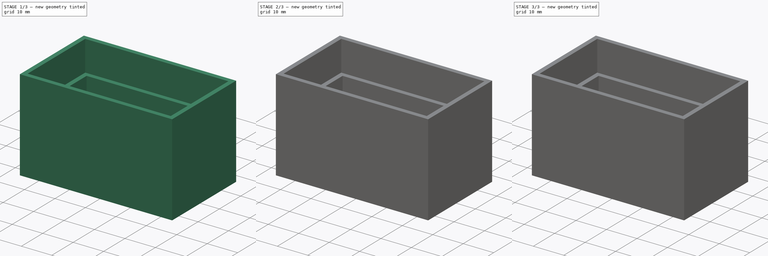
[diagram: build sequence overview — one tinted view per stage of 3, left to right]
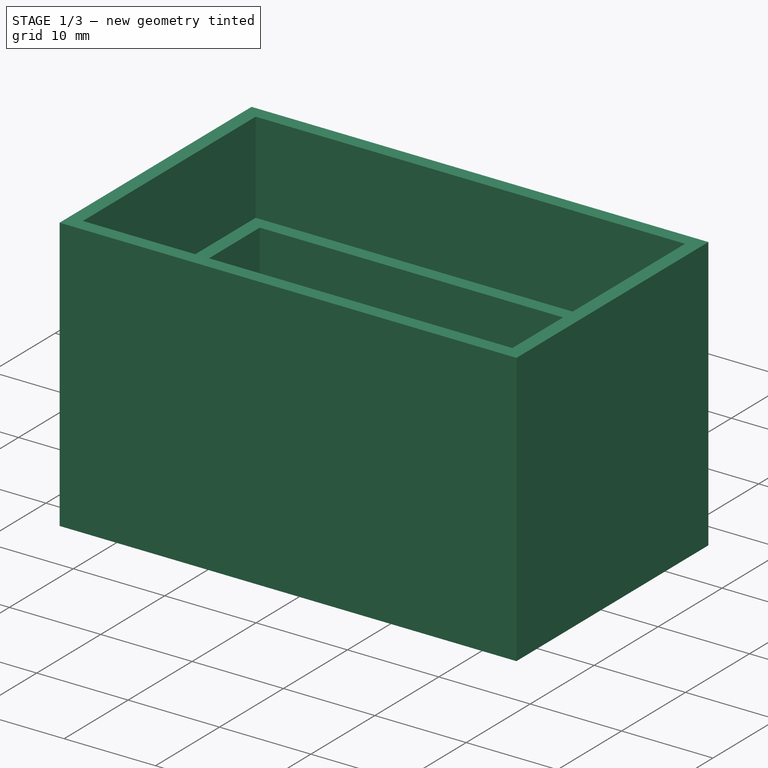
[diagram: stage 1 of 3 — iso view after this stage's code; geometry added in this stage tinted green]
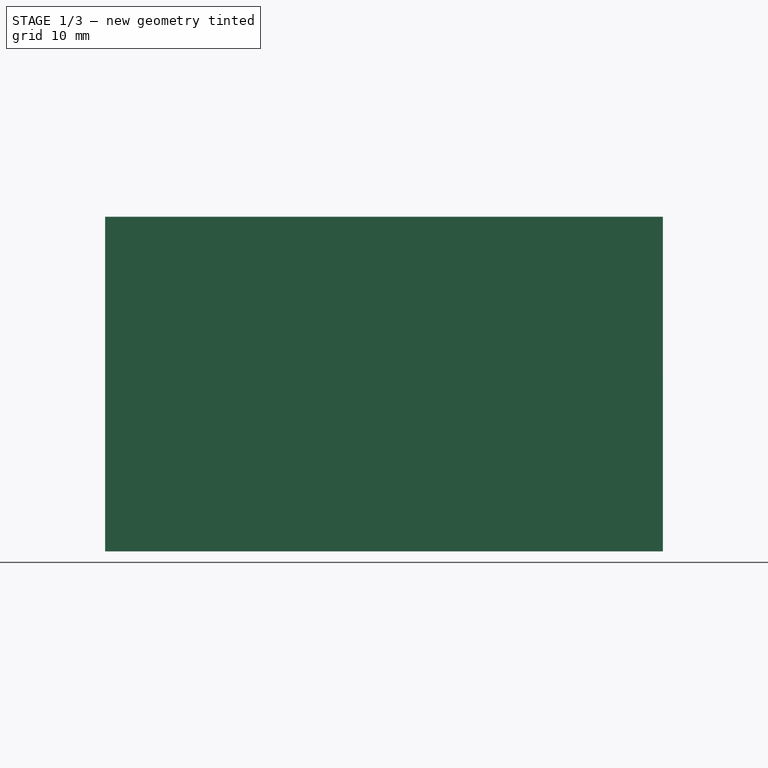
[diagram: stage 1 of 3 — front view after this stage's code; geometry added in this stage tinted green]
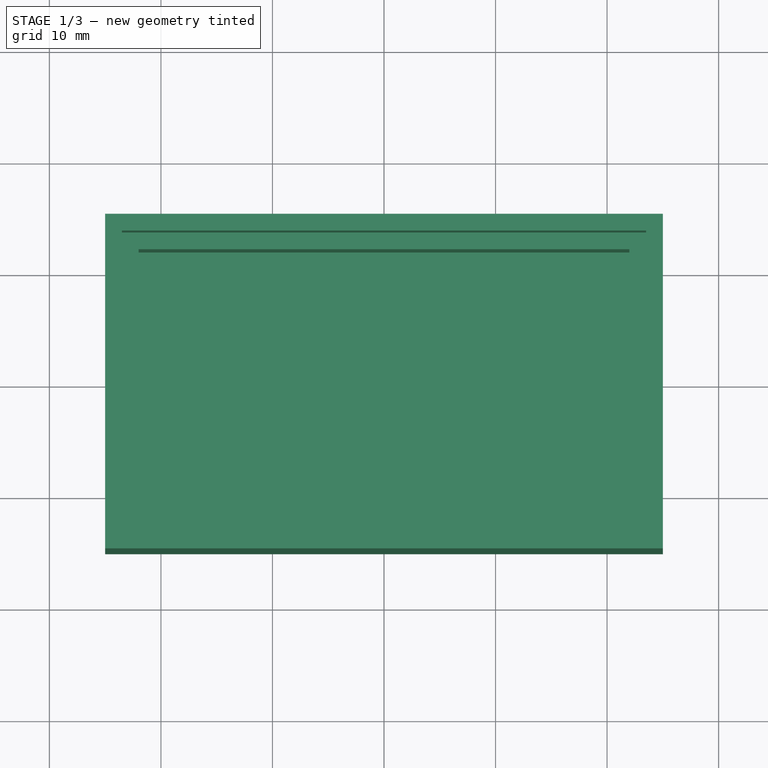
[diagram: stage 1 of 3 — top view after this stage's code; geometry added in this stage tinted green]
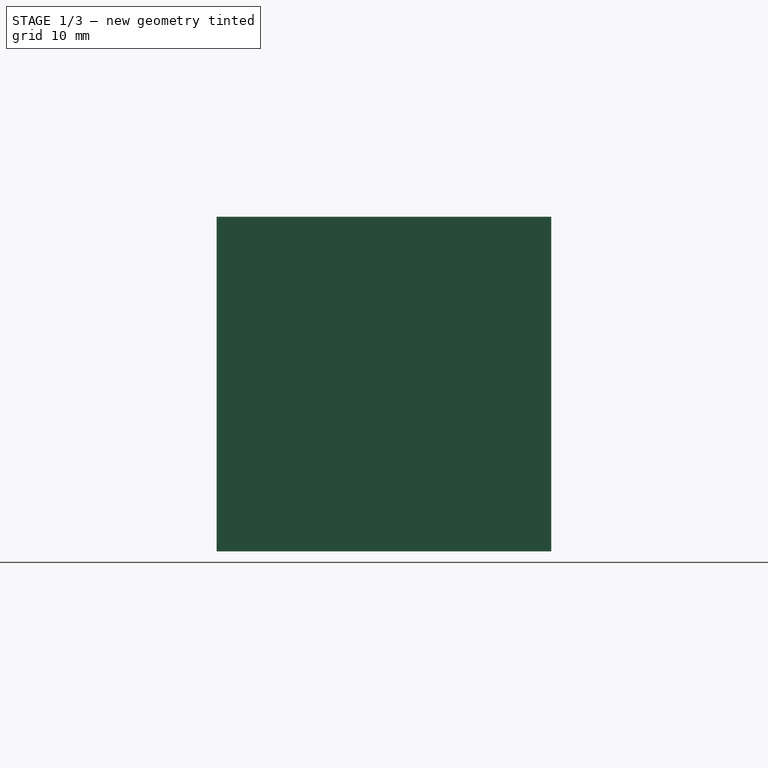
[diagram: stage 1 of 3 — right view after this stage's code; geometry added in this stage tinted green]
FCSTD DOCUMENT  (FreeCAD 0.17R13541 (Git))
Label: boiteBase
License: All rights reserved
LicenseURL: http://en.wikipedia.org/wiki/All_rights_reserved
objects: Sketcher::SketchObject×4, Drawing::FeatureViewPart×3, Part::Mirroring×3, PartDesign::Pad×2, PartDesign::Pocket×2, PartDesign::Body×2, Drawing::FeatureViewPython×2, PartDesign::FeatureBase×1, App::DocumentObjectGroup×1, App::Part×1, Drawing::FeaturePage×1
note: 18 computed .brp shape members not serialized (recipe doc carries the construction recipe); baked Part::Feature solids carry a one-line shape summary decoded from their .brp

FEATURE [Sketcher::SketchObject] Sketch
  MapMode = 5
  Support = -> [XY_Plane]
  sketch-geometry (4):
    g0: LineSegment StartX=-25 StartY=15 StartZ=0 EndX=25 EndY=15 EndZ=0
    g1: LineSegment StartX=25 StartY=15 StartZ=0 EndX=25 EndY=-15 EndZ=0
    g2: LineSegment StartX=25 StartY=-15 StartZ=0 EndX=-25 EndY=-15 EndZ=0
    g3: LineSegment StartX=-25 StartY=-15 StartZ=0 EndX=-25 EndY=15 EndZ=0
  constraints (12):
    c: Coincident(g0,g1)
    c: Coincident(g1,g2)
    c: Coincident(g2,g3)
    c: Coincident(g3,g0)
    c: Horizontal(g0)
    c: Horizontal(g2)
    c: Vertical(g1)
    c: Vertical(g3)
    c: DistanceX(g0,g0) = 50
    c: DistanceY(g1,g1) = 30
    c: Symmetric(g0,g0,g-2)
    c: Symmetric(g0,g1,g-1)
FEATURE [PartDesign::Pad] Pad  label="Dessous ext"
  Length = 30
  Length2 = 100
  Profile = -> Sketch
  Type = 0
FEATURE [Sketcher::SketchObject] Sketch002
  MapMode = 5
  Placement = pos=(0,0,30) rot=(0,0,1;0rad)
  Support = -> [Pad]
  sketch-geometry (4):
    g0: LineSegment StartX=-22 StartY=12 StartZ=0 EndX=22 EndY=12 EndZ=0
    g1: LineSegment StartX=22 StartY=12 StartZ=0 EndX=22 EndY=-12 EndZ=0
    g2: LineSegment StartX=22 StartY=-12 StartZ=0 EndX=-22 EndY=-12 EndZ=0
    g3: LineSegment StartX=-22 StartY=-12 StartZ=0 EndX=-22 EndY=12 EndZ=0
  constraints (12):
    c: Coincident(g0,g1)
    c: Coincident(g1,g2)
    c: Coincident(g2,g3)
    c: Coincident(g3,g0)
    c: Horizontal(g0)
    c: Horizontal(g2)
    c: Vertical(g1)
    c: Vertical(g3)
    c: DistanceY(g1,g1) = 24
    c: DistanceX(g0,g0) = 44
    c: Symmetric(g0,g0,g-2)
    c: Symmetric(g0,g1,g-1)
FEATURE [PartDesign::Pocket] Pocket
  BaseFeature = -> Pad
  Length = 27
  Length2 = 100
  Profile = -> Sketch002
  Type = 0
FEATURE [Sketcher::SketchObject] Sketch003
  MapMode = 5
  Placement = pos=(0,0,30) rot=(0,0,1;0rad)
  Support = -> [Pocket]
  sketch-geometry (4):
    g0: LineSegment StartX=-23.5 StartY=13.5 StartZ=0 EndX=23.5 EndY=13.5 EndZ=0
    g1: LineSegment StartX=23.5 StartY=13.5 StartZ=0 EndX=23.5 EndY=-13.5 EndZ=0
    g2: LineSegment StartX=23.5 StartY=-13.5 StartZ=0 EndX=-23.5 EndY=-13.5 EndZ=0
    g3: LineSegment StartX=-23.5 StartY=-13.5 StartZ=0 EndX=-23.5 EndY=13.5 EndZ=0
  constraints (12):
    c: Coincident(g0,g1)
    c: Coincident(g1,g2)
    c: Coincident(g2,g3)
    c: Coincident(g3,g0)
    c: Horizontal(g0)
    c: Horizontal(g2)
    c: Vertical(g1)
    c: Vertical(g3)
    c: DistanceX(g0,g0) = 47
    c: DistanceY(g1,g1) = 27
    c: Symmetric(g0,g0,g-2)
    c: Symmetric(g0,g1,g-1)
FEATURE [PartDesign::Pocket] Pocket001
  BaseFeature = -> Pocket
  Length = 10
  Length2 = 100
  Profile = -> Sketch003
  Type = 0
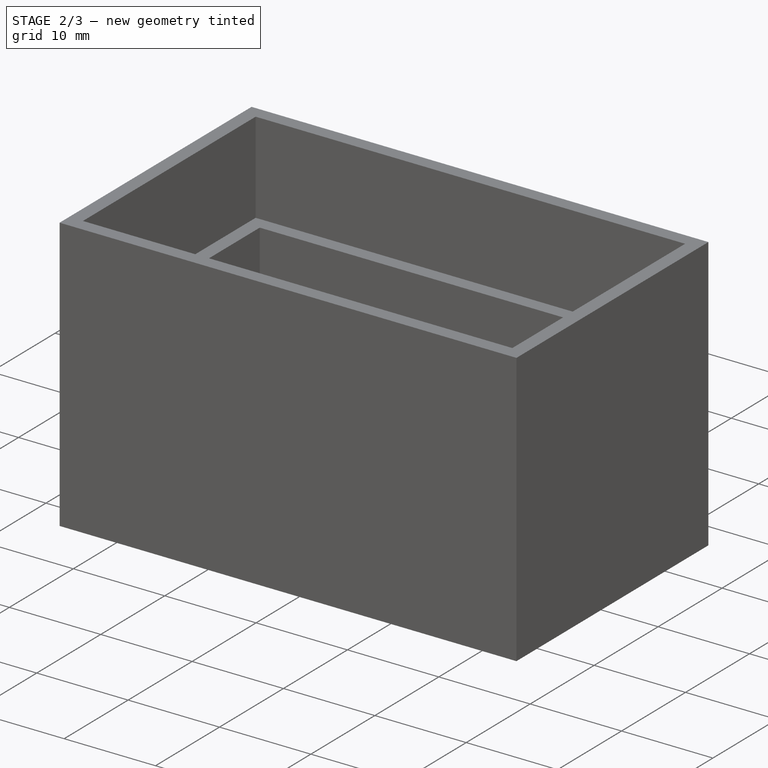
[diagram: stage 2 of 3 — iso view after this stage's code; geometry added in this stage tinted green]
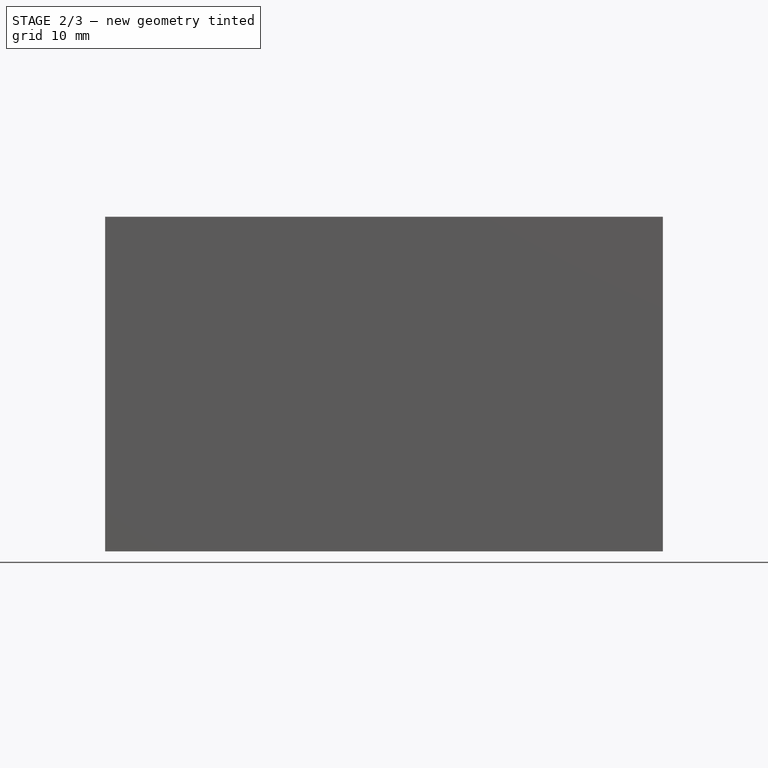
[diagram: stage 2 of 3 — front view after this stage's code; geometry added in this stage tinted green]
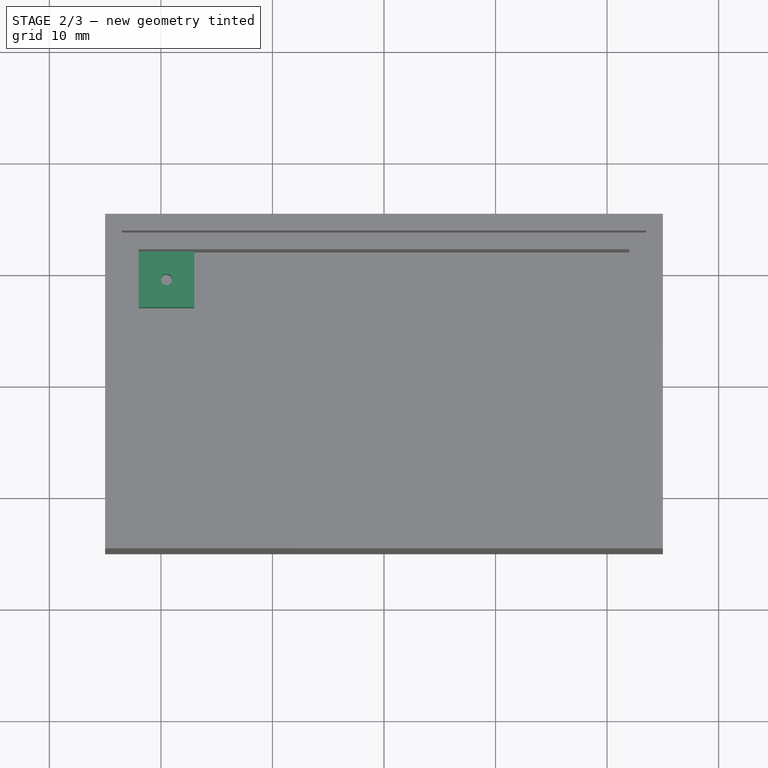
[diagram: stage 2 of 3 — top view after this stage's code; geometry added in this stage tinted green]
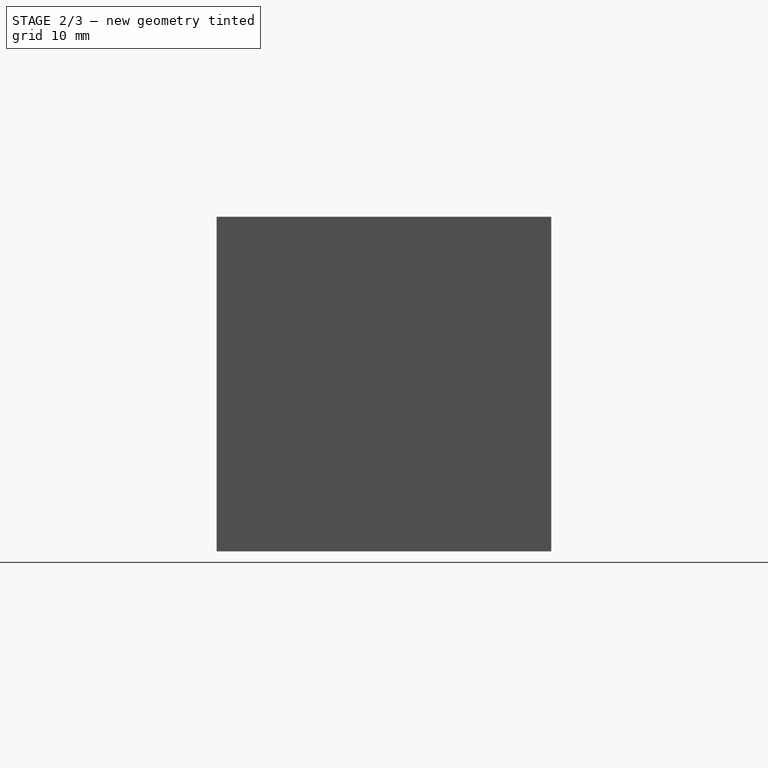
[diagram: stage 2 of 3 — right view after this stage's code; geometry added in this stage tinted green]
FEATURE [PartDesign::Body] Body
  Group = -> [Sketch,Pad,Sketch002,Pocket,Sketch003,Pocket001]
  Origin = -> Origin
  Tip = -> Pocket001
FEATURE [Sketcher::SketchObject] Sketch005
  MapMode = 5
  Placement = pos=(0,0,3) rot=(0,0,1;0rad)
  Support = -> [Pocket001]
  sketch-geometry (8):
    g0: LineSegment StartX=-22 StartY=12 StartZ=0 EndX=-17 EndY=12 EndZ=0
    g1: LineSegment StartX=-17 StartY=12 StartZ=0 EndX=-17 EndY=7 EndZ=0
    g2: LineSegment StartX=-17 StartY=7 StartZ=0 EndX=-22 EndY=7 EndZ=0
    g3: LineSegment StartX=-22 StartY=7 StartZ=0 EndX=-22 EndY=12 EndZ=0
    g4: LineSegment [constr] StartX=-22 StartY=12 StartZ=0 EndX=-17 EndY=7 EndZ=0
    g5: LineSegment [constr] StartX=-17 StartY=12 StartZ=0 EndX=-22 EndY=7 EndZ=0
    g6: GeomPoint X=-19.5 Y=9.5 Z=0
    g7: Circle CenterX=-19.5 CenterY=9.5 CenterZ=0 NormalX=0 NormalY=0 NormalZ=1 AngleXU=0 Radius=0.5
  constraints (20):
    c: Coincident(g0,g1)
    c: Coincident(g1,g2)
    c: Coincident(g2,g3)
    c: Coincident(g3,g0)
    c: Horizontal(g0)
    c: Horizontal(g2)
    c: Vertical(g1)
    c: Vertical(g3)
    c: DistanceY(g1,g1) = 5
    c: DistanceX(g0,g0) = 5
    c: Coincident(g4,g0)
    c: Coincident(g4,g1)
    c: Coincident(g5,g0)
    c: Coincident(g5,g2)
    c: PointOnObject(g6,g4)
    c: PointOnObject(g6,g5)
    c: Coincident(g7,g6)
    c: Radius(g7) = 0.5
    c: DistanceX(g0,g-1) = 22
    c: DistanceY(g-1,g0) = 12
FEATURE [Drawing::FeatureViewPart] Ortho  label="Ortho_0_0"
  Direction = (1,0,0)
  HiddenWidth = 0.15
  LineWidth = 0.35
  Rotation = -90
  Scale = 1.5
  ShowHiddenLines = true
  ShowSmoothLines = false
  Source = -> Body
  Tolerance = 0.05
  ViewResult = <g id="Ortho_0_0"\n   transform="rotate(-90,84.8333,88.3333) translate(84.8333,88.3333) scale(1.5,1.5)"\n  >\n<g   fill="none"\n   stroke="rgb(0, 0, 0)"\n   stroke-dasharray="0.2,0.1)"\n   stroke-linecap="butt"\n   stroke-linejoin="miter"\n   stroke-width="0.100000"\n   transform="scale(1,-1)"\n  >\n<path id= "1" d=" M 0 -15 L 30 -15 " />\n<path id= "2" d=" M 0 15 L 30 15 " />\n<path id= "3" d=" M 0 15 L 0 -15 " />\n<path id= "4" d=" M 30 15 L 30 -15 " />\n<path id= "5" d=" M 30 -13.5 L 30 13.5 " />\n<path id= "6" d=" M 30 13.5 L 30 -13.5 " />\n<path id= "7" d=" M 30 -13.5 L 20 -13.5 " />\n<path id= "8" d=" M 30 -13.5 L 20 -13.5 " />\n<path id= "9" d=" M 20 -13.5 L 20 13.5 " />\n<path id= "10" d=" M 30 13.5 L 20 13.5 " />\n<path id= "11" d=" M 30 13.5 L 20 13.5 " />\n<path id= "12" d=" M 20 13.5 L 20 -13.5 " />\n<path id= "13" d=" M 20 -12 L 20 12 " />\n<path id= "14" d=" M 20 12 L 20 -12 " />\n<path id= "15" d=" M 20 -12 L 3 -12 " />\n<path id= "16" d=" M 20 -12 L 3 -12 " />\n<path id= "17" d=" M 20 12 L 3 12 " />\n<path id= "18" d=" M 3 -12 L 3 12 " />\n<path id= "19" d=" M 20 12 L 3 12 " />\n<path id= "20" d=" M 3 12 L 3 -12 " />\n</g>\n<g   fill="none"\n   stroke="rgb(0, 0, 0)"\n   stroke-linecap="butt"\n   stroke-linejoin="miter"\n   stroke-width="0.233333"\n   transform="scale(1,-1)"\n  >\n<path id= "1" d=" M 0 -15 L 30 -15 " />\n<path id= "2" d=" M 0 15 L 30 15 " />\n<path id= "3" d=" M 0 -15 L 0 15 " />\n<path id= "4" d=" M 30 -15 L 30 15 " />\n</g>\n</g>
  Visible = true
  X = 84.8333
  Y = 88.3333
FEATURE [Drawing::FeatureViewPart] Ortho002  label="Ortho_0_-1"
  Direction = (0,0,-1)
  HiddenWidth = 0.15
  LineWidth = 0.35
  Rotation = 90
  Scale = 1.5
  ShowHiddenLines = true
  ShowSmoothLines = false
  Source = -> Body
  Tolerance = 0.05
  ViewResult = <g id="Ortho_0_-1"\n   transform="rotate(90,84.8333,144.167) translate(84.8333,144.167) scale(1.5,1.5)"\n  >\n<g   fill="none"\n   stroke="rgb(0, 0, 0)"\n   stroke-dasharray="0.2,0.1)"\n   stroke-linecap="butt"\n   stroke-linejoin="miter"\n   stroke-width="0.100000"\n   transform="scale(1,-1)"\n  >\n<path id= "1" d=" M 25 15 L -25 15 " />\n<path id= "2" d=" M 25 -15 L 25 15 " />\n<path id= "3" d=" M -25 15 L -25 -15 " />\n<path id= "4" d=" M -25 -15 L 25 -15 " />\n<path id= "5" d=" M 23.5 13.5 L -23.5 13.5 " />\n<path id= "6" d=" M -23.5 13.5 L -23.5 -13.5 " />\n<path id= "7" d=" M -23.5 -13.5 L 23.5 -13.5 " />\n<path id= "8" d=" M 23.5 -13.5 L 23.5 13.5 " />\n<path id= "9" d=" M 23.5 13.5 L -23.5 13.5 " />\n<path id= "10" d=" M -23.5 13.5 L -23.5 -13.5 " />\n<path id= "11" d=" M -23.5 -13.5 L 23.5 -13.5 " />\n<path id= "12" d=" M 23.5 -13.5 L 23.5 13.5 " />\n<path id= "13" d=" M 22 12 L -22 12 " />\n<path id= "14" d=" M -22 12 L -22 -12 " />\n<path id= "15" d=" M -22 -12 L 22 -12 " />\n<path id= "16" d=" M 22 -12 L 22 12 " />\n<path id= "17" d=" M 22 12 L -22 12 " />\n<path id= "18" d=" M -22 12 L -22 -12 " />\n<path id= "19" d=" M -22 -12 L 22 -12 " />\n<path id= "20" d=" M 22 -12 L 22 12 " />\n</g>\n<g   fill="none"\n   stroke="rgb(0, 0, 0)"\n   stroke-linecap="butt"\n   stroke-linejoin="miter"\n   stroke-width="0.233333"\n   transform="scale(1,-1)"\n  >\n<path id= "1" d=" M 25 15 L -25 15 " />\n<path id= "2" d=" M 25 -15 L 25 15 " />\n<path id= "3" d=" M -25 15 L -25 -15 " />\n<path id= "4" d=" M -25 -15 L 25 -15 " />\n</g>\n</g>
  Visible = true
  X = 84.8333
  Y = 144.167
FEATURE [Drawing::FeatureViewPart] Ortho003  label="Ortho_1_0"
  Direction = (0,1,0)
  HiddenWidth = 0.15
  LineWidth = 0.35
  Rotation = -90
  Scale = 1.5
  ShowHiddenLines = true
  ShowSmoothLines = false
  Source = -> Body
  Tolerance = 0.05
  ViewResult = <g id="Ortho_1_0"\n   transform="rotate(-90,197.167,88.3333) translate(197.167,88.3333) scale(1.5,1.5)"\n  >\n<g   fill="none"\n   stroke="rgb(0, 0, 0)"\n   stroke-dasharray="0.2,0.1)"\n   stroke-linecap="butt"\n   stroke-linejoin="miter"\n   stroke-width="0.100000"\n   transform="scale(1,-1)"\n  >\n<path id= "1" d=" M 0 -25 L 30 -25 " />\n<path id= "2" d=" M 0 25 L 30 25 " />\n<path id= "3" d=" M 0 25 L 0 -25 " />\n<path id= "4" d=" M 30 25 L 30 -25 " />\n<path id= "5" d=" M 30 -23.5 L 30 23.5 " />\n<path id= "6" d=" M 30 23.5 L 30 -23.5 " />\n<path id= "7" d=" M 30 -23.5 L 20 -23.5 " />\n<path id= "8" d=" M 20 -23.5 L 20 23.5 " />\n<path id= "9" d=" M 30 23.5 L 20 23.5 " />\n<path id= "10" d=" M 30 23.5 L 20 23.5 " />\n<path id= "11" d=" M 20 23.5 L 20 -23.5 " />\n<path id= "12" d=" M 30 -23.5 L 20 -23.5 " />\n<path id= "13" d=" M 20 -22 L 20 22 " />\n<path id= "14" d=" M 20 22 L 20 -22 " />\n<path id= "15" d=" M 20 22 L 3 22 " />\n<path id= "16" d=" M 3 -22 L 3 22 " />\n<path id= "17" d=" M 20 -22 L 3 -22 " />\n<path id= "18" d=" M 20 22 L 3 22 " />\n<path id= "19" d=" M 20 -22 L 3 -22 " />\n<path id= "20" d=" M 3 22 L 3 -22 " />\n</g>\n<g   fill="none"\n   stroke="rgb(0, 0, 0)"\n   stroke-linecap="butt"\n   stroke-linejoin="miter"\n   stroke-width="0.233333"\n   transform="scale(1,-1)"\n  >\n<path id= "1" d=" M 0 -25 L 30 -25 " />\n<path id= "2" d=" M 0 25 L 30 25 " />\n<path id= "3" d=" M 0 -25 L 0 25 " />\n<path id= "4" d=" M 30 -25 L 30 25 " />\n</g>\n</g>
  Visible = true
  X = 197.167
  Y = 88.3333
FEATURE [PartDesign::FeatureBase] BaseFeature
  BaseFeature = -> Body
FEATURE [PartDesign::Pad] Pad001  label="support"
  BaseFeature = -> BaseFeature
  Length = 5
  Length2 = 100
  Profile = -> Sketch005
  Type = 0
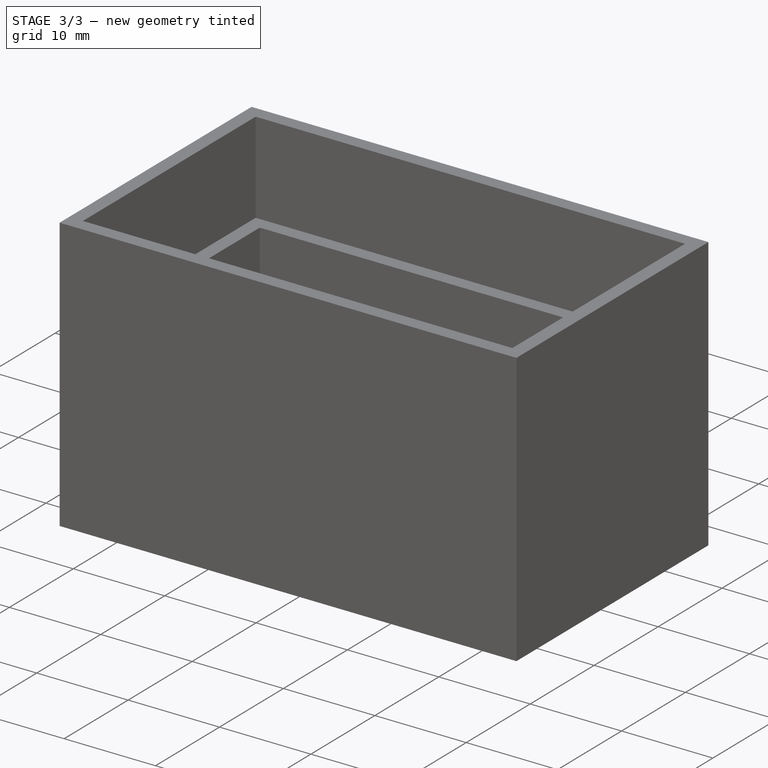
[diagram: stage 3 of 3 — iso view after this stage's code; geometry added in this stage tinted green]
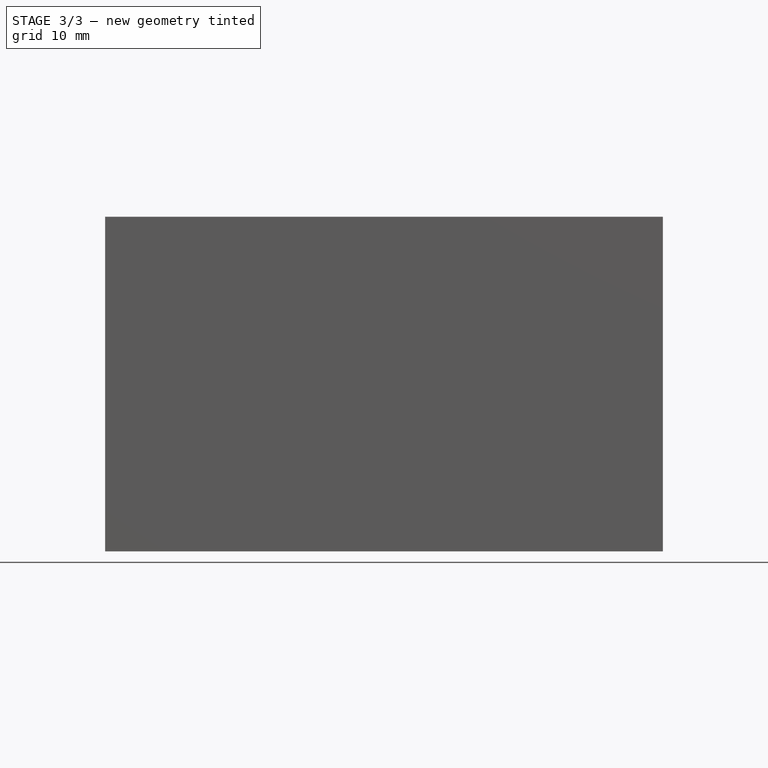
[diagram: stage 3 of 3 — front view after this stage's code; geometry added in this stage tinted green]
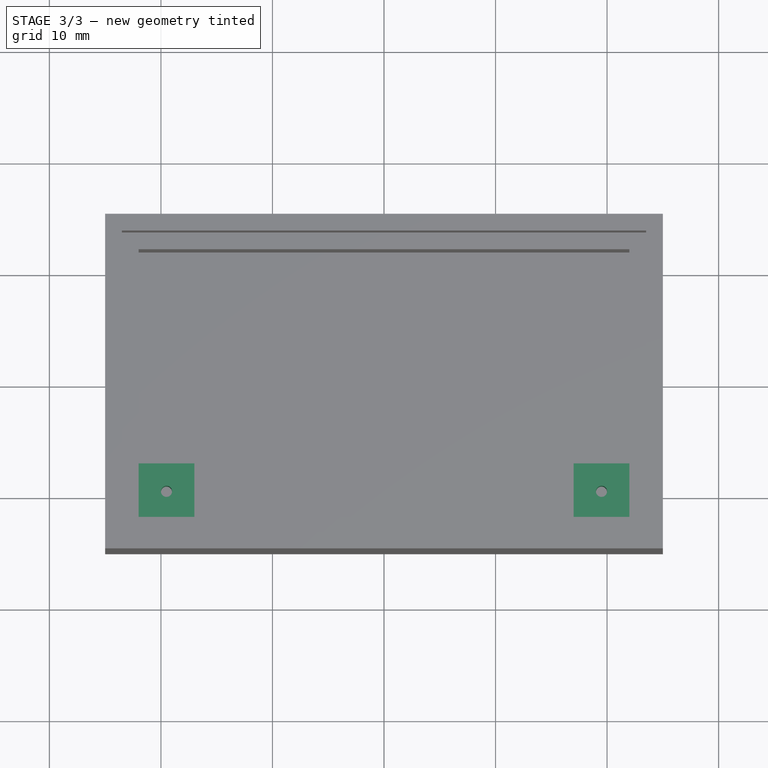
[diagram: stage 3 of 3 — top view after this stage's code; geometry added in this stage tinted green]
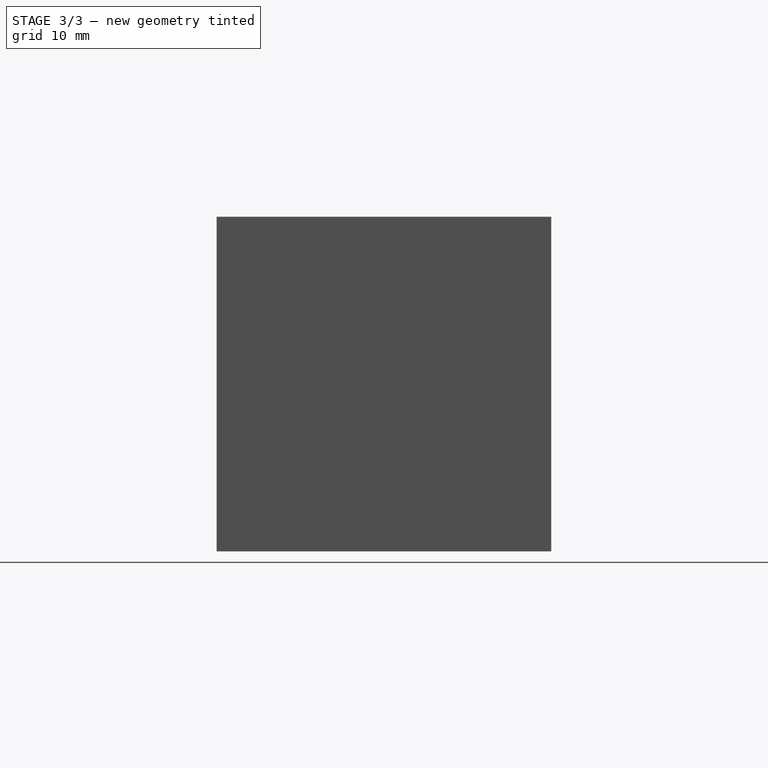
[diagram: stage 3 of 3 — right view after this stage's code; geometry added in this stage tinted green]
FEATURE [PartDesign::Body] Pad001Body
  BaseFeature = -> Body
  Group = -> [BaseFeature,Sketch005,Pad001]
  Origin = -> Origin002
  Tip = -> Pad001
FEATURE [Part::Mirroring] Part__Mirroring  label="support (Mirror #1)"
  Base = (0,0,0)
  Normal = (1,0,0)
  Source = -> Pad001Body
FEATURE [Part::Mirroring] Part__Mirroring001  label="support (Mirror #2)"
  Base = (0,0,0)
  Normal = (0,1,0)
  Source = -> Part__Mirroring
FEATURE [Part::Mirroring] Part__Mirroring002  label="support (Mirror #3)"
  Base = (0,0,0)
  Normal = (0,1,0)
  Source = -> Pad001Body
FEATURE [App::DocumentObjectGroup] Groupe  label="supports"
  Group = -> [Part__Mirroring001,Part__Mirroring002]
FEATURE [App::Part] Part
  Group = -> [Pad001Body]
  License = CC BY 3.0
  LicenseURL = http://creativecommons.org/licenses/by/3.0/
  Origin = -> Origin001
FEATURE [Drawing::FeatureViewPython] dimStack002  # drawing view (typed FeaturePython)
  Rotation = 0
  ViewResult = <blob: 2630 chars omitted>
  Visible = true
  X = 0
  Y = 0
  arrowL1 = 3
  arrowL2 = 1
  arrowW = 2
  arrow_scheme = 0
  autoPlaceOffset = 2
  click1_x = 231.269
  click1_y = 97.7429
  comma_decimal_place = false
  dimension_line_overshoot = 1
  gap_datum_points = 2
  lineColor = rgb(0,0,255)
  stack_offset = 7
  stack_offset0 = 0
  strokeWidth = 0.5
  textFormat_linear = %(value)3.3f
  textRenderer_color = rgb(0,0,255)
  textRenderer_family = inherit
  textRenderer_size = 3.6
  unit_custom_scale = 1
  unit_scheme = 0
FEATURE [Drawing::FeatureViewPython] dimStack001  # drawing view (typed FeaturePython)
  Rotation = 0
  ViewResult = <blob: 2560 chars omitted>
  Visible = true
  X = 0
  Y = 0
  arrowL1 = 3
  arrowL2 = 1
  arrowW = 2
  arrow_scheme = 0
  autoPlaceOffset = 2
  click1_x = 46.1097
  click1_y = 43.7081
  comma_decimal_place = false
  dimension_line_overshoot = 1
  gap_datum_points = 2
  lineColor = rgb(0,0,255)
  stack_offset = 7
  stack_offset0 = 0
  strokeWidth = 0.5
  textFormat_linear = %(value)3.3f
  textRenderer_color = rgb(0,0,255)
  textRenderer_family = inherit
  textRenderer_size = 3.6
  unit_custom_scale = 1
  unit_scheme = 0
FEATURE [Drawing::FeaturePage] Page
  EditableTexts = Designed by Name | Date | Scale | Weight | Title | Subtitle | Drawing number | Sheet
  Group = -> [Ortho,Ortho002,Ortho003,dimStack001,dimStack002]
  Template = D:/Program Files/FreeCAD 0.17/data/Mod/Drawing/Templates/A4_Landscape.svg
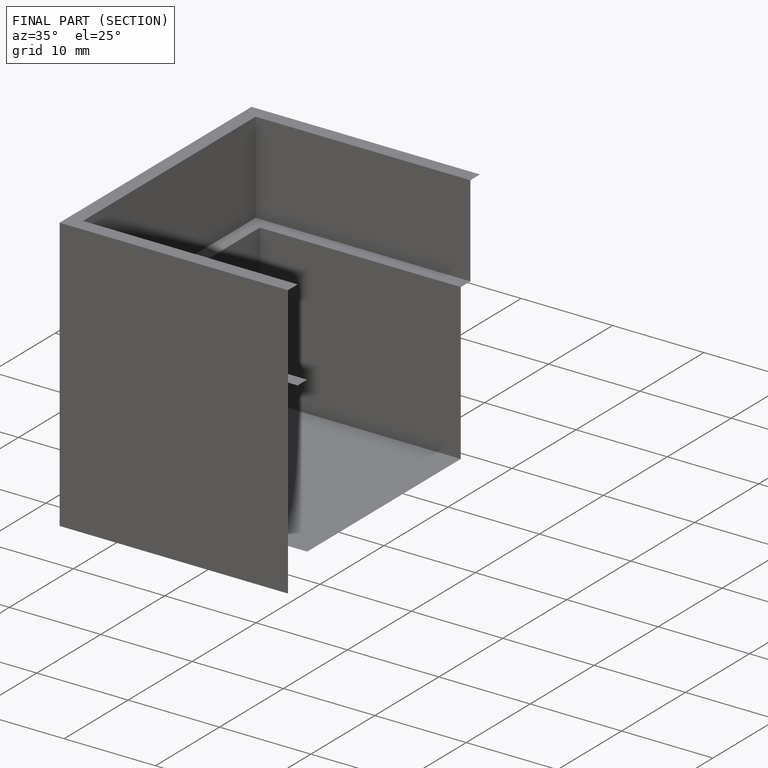
[diagram: finished part — half-section view (interior)]
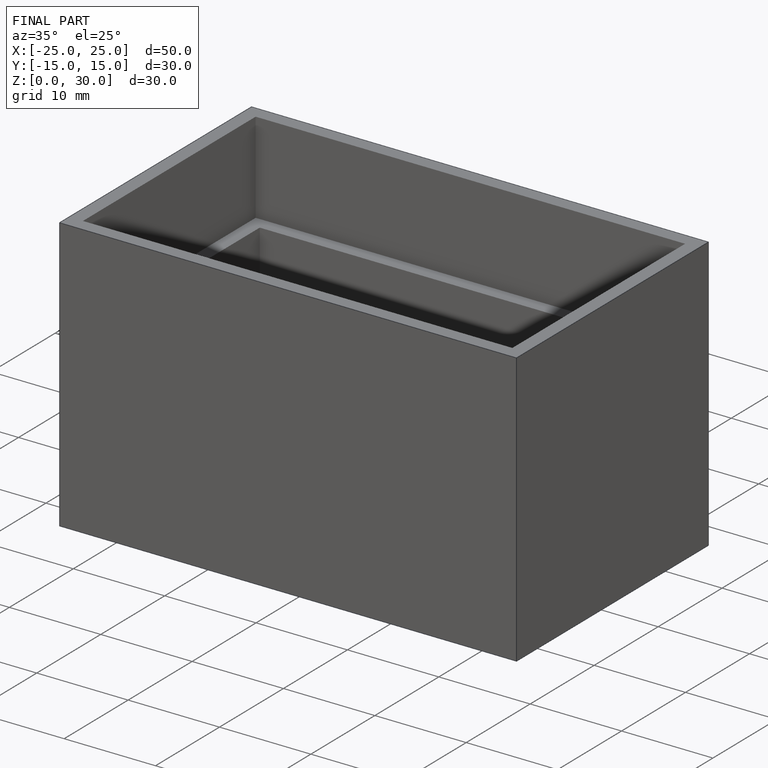
[diagram: finished part — iso view with bounding-box wireframe]
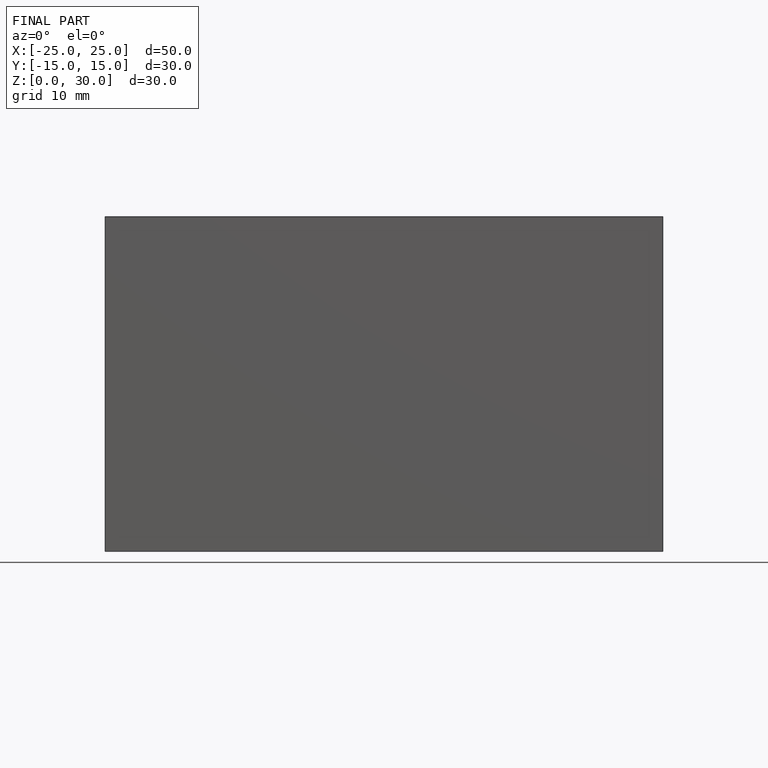
[diagram: finished part — front view with bounding-box wireframe]
